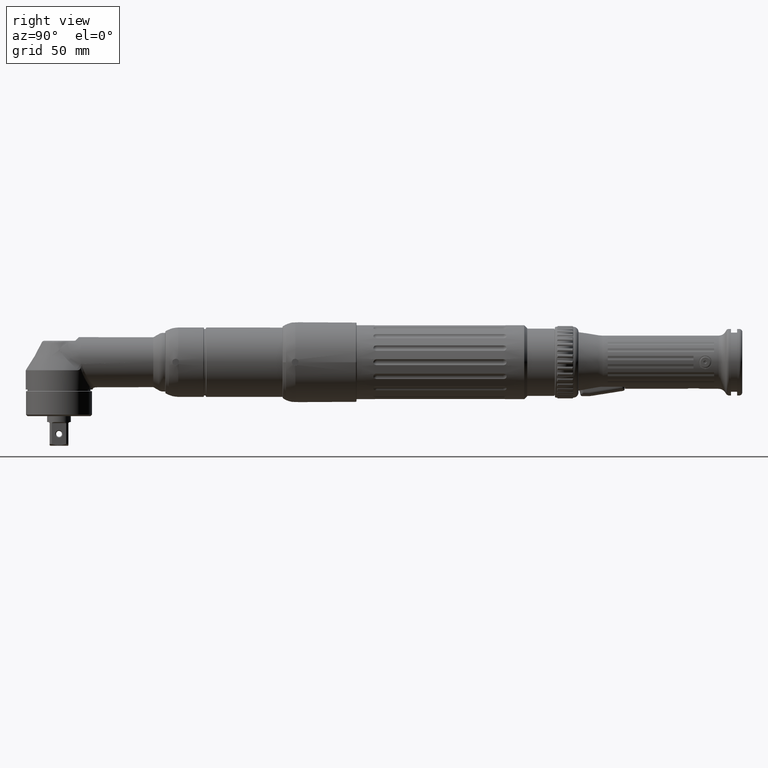
[diagram: clean part render]
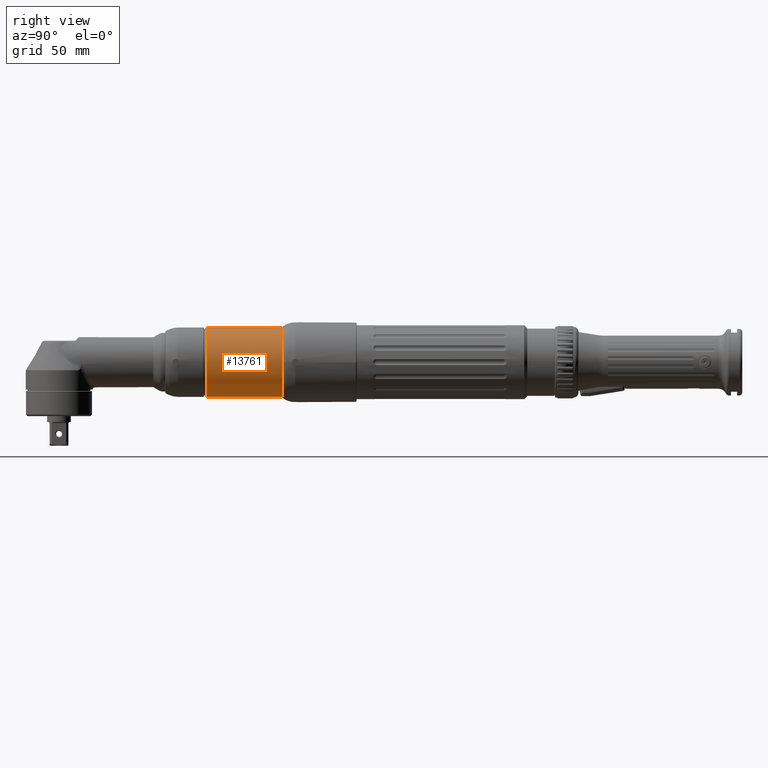
[diagram: same view with one face highlighted and labeled with its STEP entity id]
A machine part, right view. The second image highlights one B-rep face of the part: STEP entity #13761.
In plain terms, the highlighted cylindrical surface (bore or boss wall) has radius 23.5 mm, axis along (-0, 1, 0).
Its self-contained STEP definition (entity closure, byte-faithful):
#1928=CYLINDRICAL_SURFACE('',#14702,23.5);
#2226=FACE_BOUND('',#3427,.T.);
#2513=FACE_OUTER_BOUND('',#3426,.T.);
#3426=EDGE_LOOP('',(#8723));
#3427=EDGE_LOOP('',(#8724));
#4537=CIRCLE('',#14703,23.5);
#4538=CIRCLE('',#14704,23.5);
#5459=VERTEX_POINT('',#21874);
#5460=VERTEX_POINT('',#21876);
#6757=EDGE_CURVE('',#5459,#5459,#4537,.T.);
#6758=EDGE_CURVE('',#5460,#5460,#4538,.T.);
#8723=ORIENTED_EDGE('',*,*,#6757,.T.);
#8724=ORIENTED_EDGE('',*,*,#6758,.F.);
#13761=ADVANCED_FACE('',(#2513,#2226),#1928,.T.);
#14702=AXIS2_PLACEMENT_3D('',#21873,#16673,#16674);
#14703=AXIS2_PLACEMENT_3D('',#21875,#16675,#16676);
#14704=AXIS2_PLACEMENT_3D('',#21877,#16677,#16678);
#16673=DIRECTION('center_axis',(-7.41778629080679E-16,1.,2.47385010126461E-16));
#16674=DIRECTION('ref_axis',(6.93889390390701E-18,2.47385010126461E-16,
-1.));
#16675=DIRECTION('center_axis',(4.59266580433969E-16,-1.,-2.4738501012646E-16));
#16676=DIRECTION('ref_axis',(6.93889390390701E-18,2.47385010126461E-16,
-1.));
#16677=DIRECTION('center_axis',(7.41778629080679E-16,-1.,-2.47385010126461E-16));
#16678=DIRECTION('ref_axis',(-6.93889390390701E-18,-2.47385010126461E-16,
1.));
#21873=CARTESIAN_POINT('Origin',(-9.89235415490111E-14,131.,3.80415350155065E-14));
#21874=CARTESIAN_POINT('',(23.4999999999999,151.25,2.56916283664404E-14));
#21875=CARTESIAN_POINT('Origin',(-1.13944558787895E-13,151.25,4.30510814705673E-14));
#21876=CARTESIAN_POINT('',(-7.27019754055018E-14,99.7500000000001,-23.5));
#21877=CARTESIAN_POINT('Origin',(-7.57429593902399E-14,99.7500000000001,
3.03107534490546E-14));